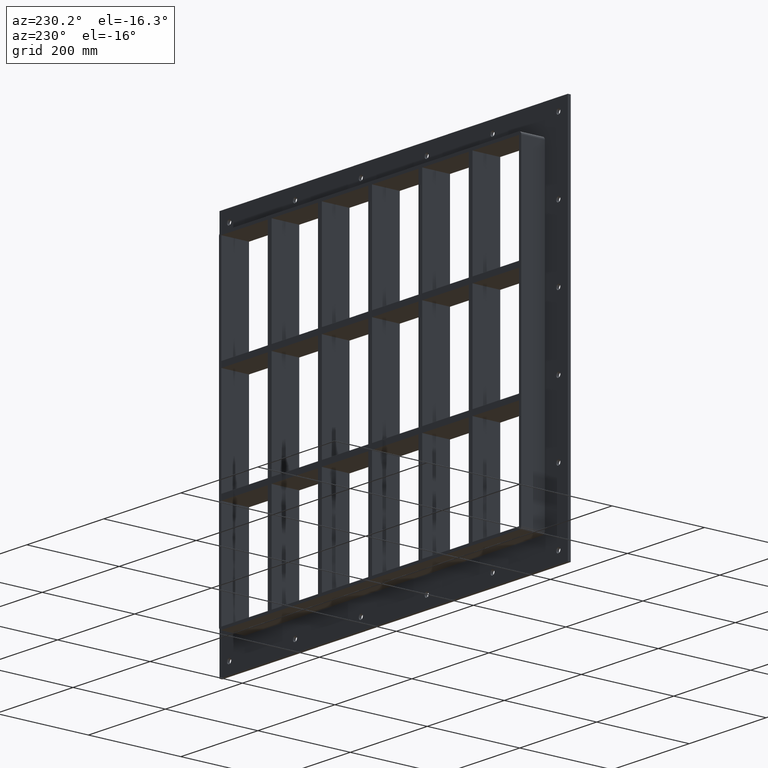
[diagram: clean part render]
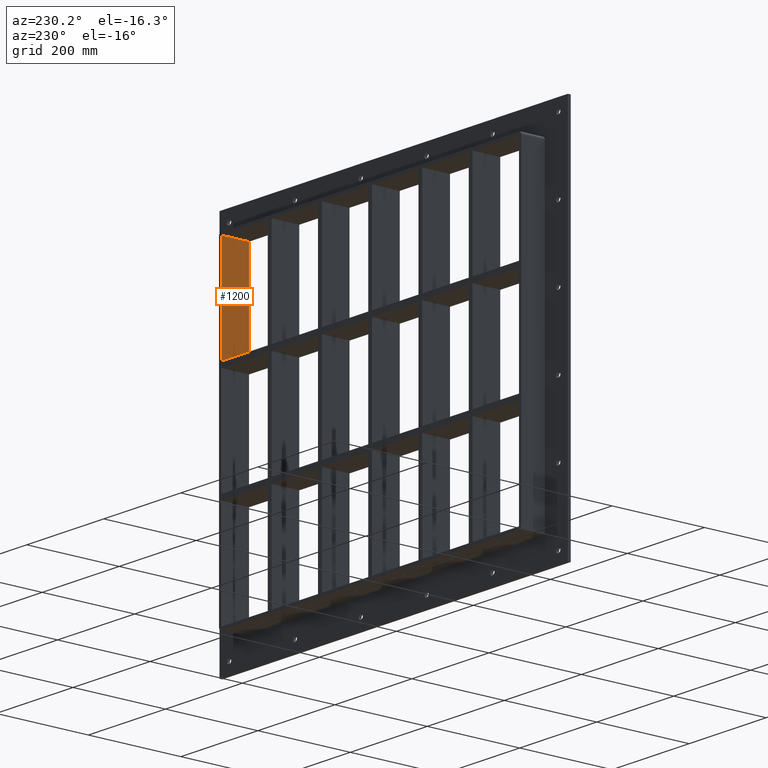
[diagram: same view with one face highlighted and labeled with its STEP entity id]
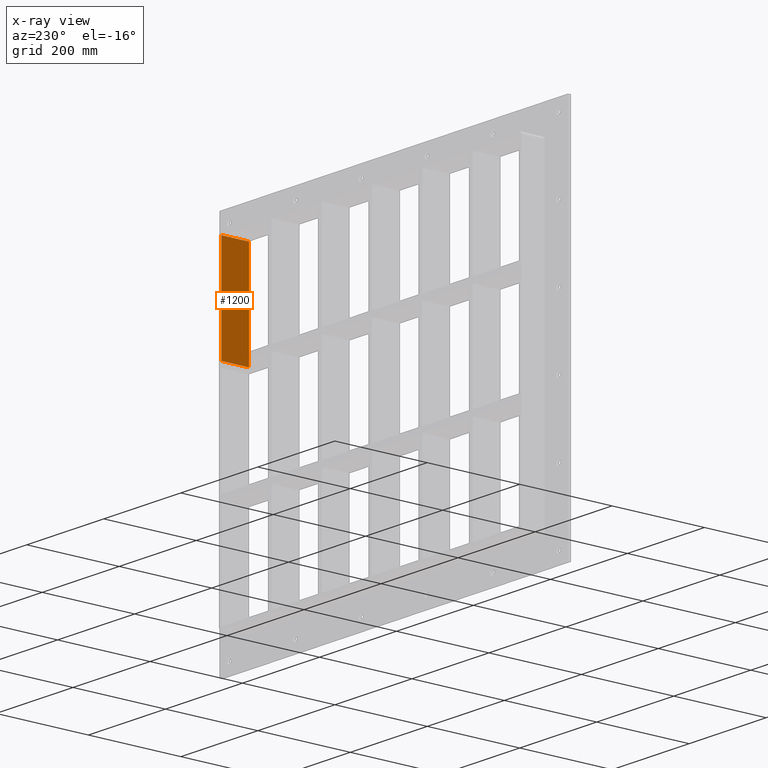
[diagram: x-ray of the same camera — body ghosted, the highlighted face saturated]
A machine part, auxiliary view. The second image highlights one B-rep face of the part: STEP entity #1200.
The next image is the same camera in x-ray: the body ghosted, the highlighted face saturated — about 0% of this face is hidden behind the body in this view.
In plain terms, the highlighted planar face has unit normal (1, 0, 0).
Its self-contained STEP definition (entity closure, byte-faithful):
#923=CARTESIAN_POINT('',(386.50000000000023,-3.0,121.00000000000023));
#924=VERTEX_POINT('',#923);
#931=CARTESIAN_POINT('',(386.50000000000023,57.0,121.00000000000023));
#932=VERTEX_POINT('',#931);
#933=CARTESIAN_POINT('',(386.50000000000006,57.000000000000007,121.00000000000023));
#934=DIRECTION('',(0.0,-1.0,0.0));
#935=VECTOR('',#934,60.000000000000007);
#936=LINE('',#933,#935);
#937=EDGE_CURVE('',#932,#924,#936,.T.);
#1170=CARTESIAN_POINT('',(386.50000000000006,0.0,339.00000000000006));
#1171=DIRECTION('',(1.0,0.0,0.0));
#1172=DIRECTION('',(0.0,0.0,-1.0));
#1173=AXIS2_PLACEMENT_3D('',#1170,#1171,#1172);
#1174=PLANE('',#1173);
#1175=ORIENTED_EDGE('',*,*,#937,.T.);
#1176=CARTESIAN_POINT('',(386.50000000000006,-3.0,339.00000000000011));
#1177=VERTEX_POINT('',#1176);
#1178=CARTESIAN_POINT('',(386.50000000000006,-3.0,339.00000000000011));
#1179=DIRECTION('',(0.0,0.0,-1.0));
#1180=VECTOR('',#1179,217.99999999999989);
#1181=LINE('',#1178,#1180);
#1182=EDGE_CURVE('',#1177,#924,#1181,.T.);
#1183=ORIENTED_EDGE('',*,*,#1182,.F.);
#1184=CARTESIAN_POINT('',(386.50000000000006,57.0,339.00000000000011));
#1185=VERTEX_POINT('',#1184);
#1186=CARTESIAN_POINT('',(386.50000000000006,-3.0,339.00000000000006));
#1187=DIRECTION('',(0.0,1.0,0.0));
#1188=VECTOR('',#1187,60.0);
#1189=LINE('',#1186,#1188);
#1190=EDGE_CURVE('',#1177,#1185,#1189,.T.);
#1191=ORIENTED_EDGE('',*,*,#1190,.T.);
#1192=CARTESIAN_POINT('',(386.50000000000006,57.0,121.00000000000023));
#1193=DIRECTION('',(0.0,0.0,1.0));
#1194=VECTOR('',#1193,217.99999999999989);
#1195=LINE('',#1192,#1194);
#1196=EDGE_CURVE('',#932,#1185,#1195,.T.);
#1197=ORIENTED_EDGE('',*,*,#1196,.F.);
#1198=EDGE_LOOP('',(#1175,#1183,#1191,#1197));
#1199=FACE_OUTER_BOUND('',#1198,.T.);
#1200=ADVANCED_FACE('',(#1199),#1174,.F.);